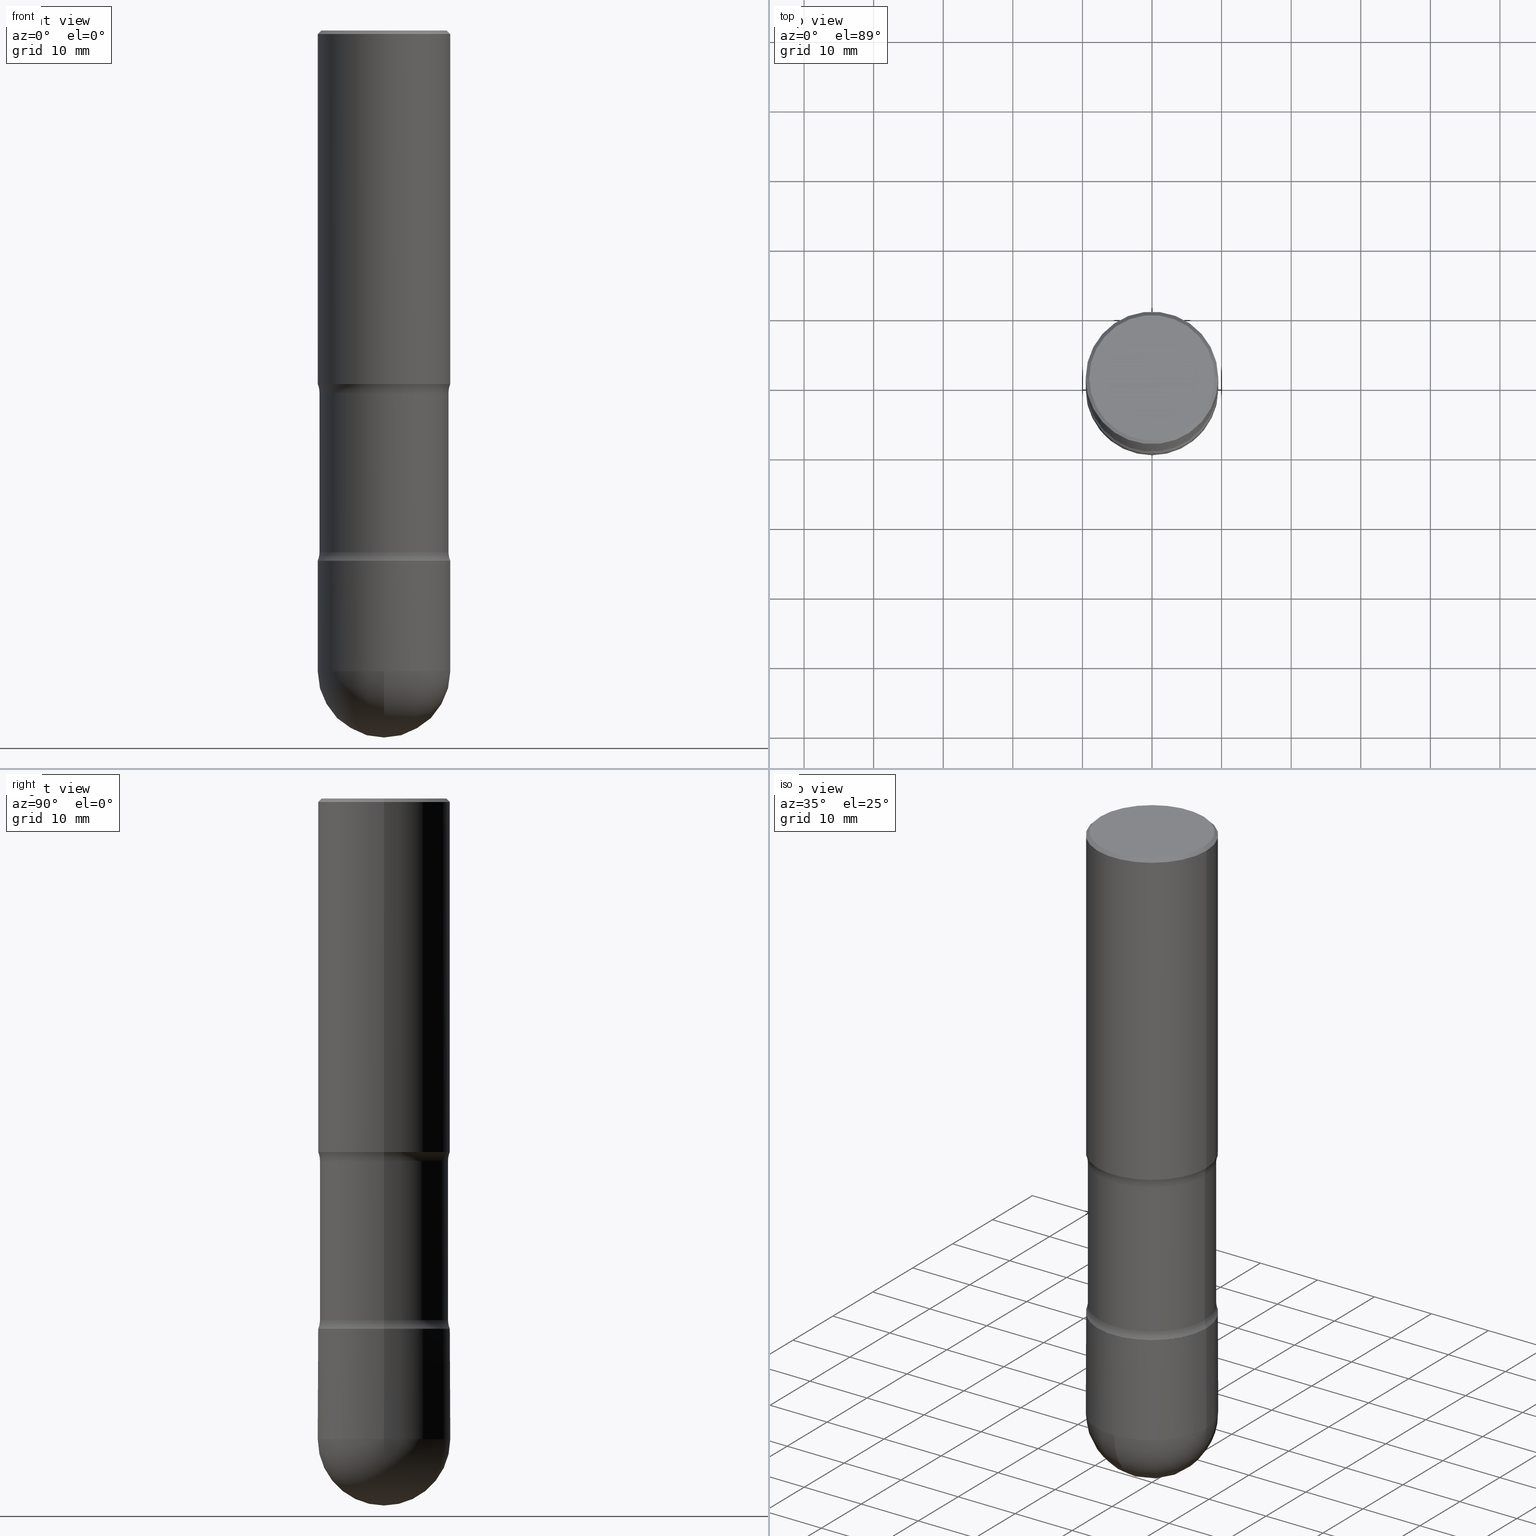
[diagram: canonical four-view strip — front | top / right | iso, engineering-drawing reading convention]
A machine part, canonical four-view strip (front | top / right | iso — engineering-drawing reading convention). The complete STEP part file that produces these views, byte-faithful:
ISO-10303-21;
HEADER;
FILE_DESCRIPTION (( 'STEP AP203' ),
    '1' );
FILE_NAME ('35015.STEP',
    '2024-02-29T19:24:18',
    ( '' ),
    ( '' ),
    'SwSTEP 2.0',
    'SolidWorks 2023',
    '' );
FILE_SCHEMA (( 'CONFIG_CONTROL_DESIGN' ));
ENDSEC;

DATA;
#1 = DIRECTION ( 'NONE',  ( 2.438088387897960049E-29, -3.491481338843145188E-15, -1.000000000000000000 ) ) ;
#2 = ORIENTED_EDGE ( 'NONE', *, *, #188, .T. ) ;
#3 = SHAPE_DEFINITION_REPRESENTATION ( #539, #107 ) ;
#4 = CARTESIAN_POINT ( 'NONE',  ( -0.3649999999999996581, -7.925662639173949635E-15, -2.999999999999999556 ) ) ;
#5 = DIRECTION ( 'NONE',  ( -1.000000000000000000, 6.982962677686265922E-15, -4.876176775795935793E-29 ) ) ;
#6 = VECTOR ( 'NONE', #104, 39.37007874015748143 ) ;
#7 = APPROVAL_PERSON_ORGANIZATION ( #173, #49, #304 ) ;
#8 = DIRECTION ( 'NONE',  ( 2.445468806185136597E-29, -3.491481338843145583E-15, -1.000000000000000000 ) ) ;
#9 = CARTESIAN_POINT ( 'NONE',  ( 7.336406418555408669E-29, -1.047444401652943478E-14, -2.999999999999999556 ) ) ;
#10 = APPROVAL_STATUS ( 'not_yet_approved' ) ;
#11 = DIRECTION ( 'NONE',  ( -1.000000000000000000, 6.982962677686266711E-15, 0.000000000000000000 ) ) ;
#12 = FACE_OUTER_BOUND ( 'NONE', #509, .T. ) ;
#13 = CARTESIAN_POINT ( 'NONE',  ( -0.3749999999999996114, 2.548781377355482774E-15, -0.02000000000000033348 ) ) ;
#14 = VECTOR ( 'NONE', #350, 39.37007874015748143 ) ;
#15 = AXIS2_PLACEMENT_3D ( 'NONE', #77, #250, #429 ) ;
#16 = DIRECTION ( 'NONE',  ( 2.445468806185136597E-29, -3.491481338843145583E-15, -1.000000000000000000 ) ) ;
#17 = APPLICATION_CONTEXT ( 'configuration controlled 3d designs of mechanical parts and assemblies' ) ;
#18 = CARTESIAN_POINT ( 'NONE',  ( -0.3749999999999993894, -8.900996675817548507E-15, -3.624999999999999556 ) ) ;
#19 = EDGE_CURVE ( 'NONE', #286, #115, #545, .T. ) ;
#20 = CARTESIAN_POINT ( 'NONE',  ( 4.890937612370354609E-31, -6.982962677686407473E-17, -0.02000000000000033348 ) ) ;
#21 = EDGE_CURVE ( 'NONE', #565, #43, #337, .T. ) ;
#22 = ORIENTED_EDGE ( 'NONE', *, *, #538, .T. ) ;
#23 = AXIS2_PLACEMENT_3D ( 'NONE', #9, #144, #46 ) ;
#24 = AXIS2_PLACEMENT_3D ( 'NONE', #485, #97, #272 ) ;
#25 = CARTESIAN_POINT ( 'NONE',  ( 7.336406418555408669E-29, -1.047444401652943478E-14, -2.999999999999999556 ) ) ;
#26 = EDGE_CURVE ( 'NONE', #533, #300, #92, .T. ) ;
#27 = DIRECTION ( 'NONE',  ( -2.445468806185136877E-29, 3.491481338843145188E-15, 1.000000000000000000 ) ) ;
#28 = DIRECTION ( 'NONE',  ( -1.000000000000000000, 6.982962677686266711E-15, 0.000000000000000000 ) ) ;
#29 = DIRECTION ( 'NONE',  ( 2.445468806185136597E-29, -3.491481338843145583E-15, -1.000000000000000000 ) ) ;
#30 = ORIENTED_EDGE ( 'NONE', *, *, #348, .T. ) ;
#31 = DIRECTION ( 'NONE',  ( 1.000000000000000000, -6.982962677686266711E-15, 4.883557194083113462E-29 ) ) ;
#32 = EDGE_CURVE ( 'NONE', #115, #286, #234, .T. ) ;
#33 = AXIS2_PLACEMENT_3D ( 'NONE', #44, #483, #227 ) ;
#34 = ORIENTED_EDGE ( 'NONE', *, *, #32, .F. ) ;
#35 = ORIENTED_EDGE ( 'NONE', *, *, #207, .T. ) ;
#36 = CALENDAR_DATE ( 2024, 29, 2 ) ;
#37 = ORIENTED_EDGE ( 'NONE', *, *, #188, .F. ) ;
#38 = DIRECTION ( 'NONE',  ( 7.105427357601001070E-15, 1.000000000000000000, 0.000000000000000000 ) ) ;
#39 = EDGE_LOOP ( 'NONE', ( #341, #242, #215, #78 ) ) ;
#40 = ORIENTED_EDGE ( 'NONE', *, *, #269, .T. ) ;
#41 = ORIENTED_EDGE ( 'NONE', *, *, #359, .T. ) ;
#42 = DIRECTION ( 'NONE',  ( -1.000000000000000000, 6.982962677686265922E-15, 0.000000000000000000 ) ) ;
#43 = VERTEX_POINT ( 'NONE', #330 ) ;
#44 = CARTESIAN_POINT ( 'NONE',  ( 5.010740627511209416E-29, -7.154009632218597667E-15, -2.048989794855664126 ) ) ;
#45 = CARTESIAN_POINT ( 'NONE',  ( -0.3549999999999994826, 2.478951750578621053E-15, -1.731042755407554628E-29 ) ) ;
#46 = DIRECTION ( 'NONE',  ( 1.000000000000000000, -6.982962677686266711E-15, 0.000000000000000000 ) ) ;
#47 = DIRECTION ( 'NONE',  ( -2.445468806185136597E-29, 3.491481338843145583E-15, 1.000000000000000000 ) ) ;
#48 = AXIS2_PLACEMENT_3D ( 'NONE', #540, #493, #231 ) ;
#49 = APPROVAL ( #134, 'UNSPECIFIED' ) ;
#50 = AXIS2_PLACEMENT_3D ( 'NONE', #445, #55, #186 ) ;
#51 = DIRECTION ( 'NONE',  ( 6.860497997771531562E-15, 1.000000000000000000, -3.491481338843145583E-15 ) ) ;
#52 = FACE_OUTER_BOUND ( 'NONE', #39, .T. ) ;
#53 = DIRECTION ( 'NONE',  ( 2.438088387897960049E-29, -3.491481338843145188E-15, -1.000000000000000000 ) ) ;
#54 = CIRCLE ( 'NONE', #274, 0.3750000000000002220 ) ;
#55 = DIRECTION ( 'NONE',  ( 2.445468806185136597E-29, -3.491481338843145583E-15, -1.000000000000000000 ) ) ;
#56 = EDGE_CURVE ( 'NONE', #527, #43, #287, .T. ) ;
#57 = CARTESIAN_POINT ( 'NONE',  ( 8.661722428741013977E-29, -1.294747346810389857E-14, -3.624999999999999556 ) ) ;
#58 = CARTESIAN_POINT ( 'NONE',  ( 0.3749999999999996114, -2.642516375941186056E-15, -0.02000000000000033348 ) ) ;
#59 = DIRECTION ( 'NONE',  ( 2.445468806185136597E-29, -3.491481338843145583E-15, -1.000000000000000000 ) ) ;
#60 =( CONVERSION_BASED_UNIT ( 'INCH', #362 ) LENGTH_UNIT ( ) NAMED_UNIT ( #99 ) );
#61 = DIRECTION ( 'NONE',  ( -1.000000000000000000, 6.982962677686268288E-15, 0.000000000000000000 ) ) ;
#62 = CARTESIAN_POINT ( 'NONE',  ( -0.3744999999999995000, -7.813461471107863922E-15, -2.999999999999999556 ) ) ;
#63 = CC_DESIGN_PERSON_AND_ORGANIZATION_ASSIGNMENT ( #212, #562, ( #149 ) ) ;
#64 = AXIS2_PLACEMENT_3D ( 'NONE', #93, #439, #182 ) ;
#65 = TOROIDAL_SURFACE ( 'NONE', #33, 0.4899999999999880007, 0.1249999999999882871 ) ;
#66 = DIRECTION ( 'NONE',  ( -1.000000000000000000, 6.982962677686266711E-15, 0.000000000000000000 ) ) ;
#67 = PERSON_AND_ORGANIZATION ( #204, #257 ) ;
#68 = FACE_OUTER_BOUND ( 'NONE', #388, .T. ) ;
#69 = ORIENTED_EDGE ( 'NONE', *, *, #32, .T. ) ;
#70 = EDGE_CURVE ( 'NONE', #259, #447, #478, .T. ) ;
#71 = AXIS2_PLACEMENT_3D ( 'NONE', #417, #59, #28 ) ;
#72 = APPROVAL_PERSON_ORGANIZATION ( #466, #100, #248 ) ;
#73 = ADVANCED_FACE ( 'NONE', ( #229 ), #125, .T. ) ;
#74 = ORIENTED_EDGE ( 'NONE', *, *, #148, .T. ) ;
#75 = ORIENTED_EDGE ( 'NONE', *, *, #384, .T. ) ;
#76 = VERTEX_POINT ( 'NONE', #199 ) ;
#77 = CARTESIAN_POINT ( 'NONE',  ( 7.216603403414475810E-29, -1.030339706199713222E-14, -2.951010205144336318 ) ) ;
#78 = ORIENTED_EDGE ( 'NONE', *, *, #21, .T. ) ;
#79 = CARTESIAN_POINT ( 'NONE',  ( 2.615119522793576429E-15, 0.3744999999999890639, -3.000000000000000888 ) ) ;
#80 = APPROVAL ( #10, 'UNSPECIFIED' ) ;
#81 = ORIENTED_EDGE ( 'NONE', *, *, #161, .F. ) ;
#82 = DIRECTION ( 'NONE',  ( -1.000000000000000000, 6.982962677686267499E-15, 0.000000000000000000 ) ) ;
#83 = VECTOR ( 'NONE', #237, 39.37007874015748143 ) ;
#84 = ORIENTED_EDGE ( 'NONE', *, *, #559, .F. ) ;
#85 = DATE_AND_TIME ( #474, #214 ) ;
#86 = FACE_OUTER_BOUND ( 'NONE', #249, .T. ) ;
#87 = APPROVAL_ROLE ( '' ) ;
#88 = CARTESIAN_POINT ( 'NONE',  ( 7.336406418555408669E-29, -1.047444401652943478E-14, -2.999999999999999556 ) ) ;
#89 = ADVANCED_FACE ( 'NONE', ( #537 ), #192, .T. ) ;
#90 = COORDINATED_UNIVERSAL_TIME_OFFSET ( 5, 0, .BEHIND. ) ;
#91 = DIRECTION ( 'NONE',  ( -1.000000000000000000, 6.982962677686267499E-15, 0.000000000000000000 ) ) ;
#92 = CIRCLE ( 'NONE', #405, 0.3549999999999994826 ) ;
#93 = CARTESIAN_POINT ( 'NONE',  ( 0.000000000000000000, 0.000000000000000000, 0.000000000000000000 ) ) ;
#94 = AXIS2_PLACEMENT_3D ( 'NONE', #501, #209, #82 ) ;
#95 = CARTESIAN_POINT ( 'NONE',  ( 7.336406418555408669E-29, -1.047444401652943478E-14, -2.999999999999999556 ) ) ;
#96 = ADVANCED_FACE ( 'NONE', ( #68 ), #235, .T. ) ;
#97 = DIRECTION ( 'NONE',  ( -2.445468806185136597E-29, 3.491481338843145583E-15, 1.000000000000000000 ) ) ;
#98 = MANIFOLD_SOLID_BREP ( 'Body-Move/Copy2[1]', #228 ) ;
#99 = DIMENSIONAL_EXPONENTS ( 1.000000000000000000, 0.000000000000000000, 0.000000000000000000, 0.000000000000000000, 0.000000000000000000, 0.000000000000000000, 0.000000000000000000 ) ;
#100 = APPROVAL ( #340, 'UNSPECIFIED' ) ;
#101 = DIRECTION ( 'NONE',  ( 1.000000000000000000, -6.982962677686266711E-15, 4.883557194083113462E-29 ) ) ;
#102 =( NAMED_UNIT ( * ) SI_UNIT ( $, .STERADIAN. ) SOLID_ANGLE_UNIT ( ) );
#103 = CIRCLE ( 'NONE', #327, 0.3749999999999998890 ) ;
#104 = DIRECTION ( 'NONE',  ( -0.7071067811868226860, 7.493145998871348125E-15, 0.7071067811862723484 ) ) ;
#105 = AXIS2_PLACEMENT_3D ( 'NONE', #95, #16, #183 ) ;
#106 =( LENGTH_UNIT ( ) NAMED_UNIT ( * ) SI_UNIT ( $, .METRE. ) );
#107 = ADVANCED_BREP_SHAPE_REPRESENTATION ( '35015', ( #98, #285, #434 ), #371 ) ;
#108 = DIRECTION ( 'NONE',  ( 2.445468806185136597E-29, -3.491481338843145583E-15, -1.000000000000000000 ) ) ;
#109 = CYLINDRICAL_SURFACE ( 'NONE', #514, 0.3749999999999993894 ) ;
#110 = ADVANCED_FACE ( 'NONE', ( #316 ), #241, .T. ) ;
#111 = DIRECTION ( 'NONE',  ( -2.445468806185136597E-29, 3.491481338843145583E-15, 1.000000000000000000 ) ) ;
#112 = DIRECTION ( 'NONE',  ( -2.445468806185136597E-29, 3.491481338843145583E-15, 1.000000000000000000 ) ) ;
#113 = CARTESIAN_POINT ( 'NONE',  ( -0.3749999999999993894, 2.664535259100371358E-15, -1.844600658845586515E-29 ) ) ;
#114 = CIRCLE ( 'NONE', #145, 0.1249999999999882871 ) ;
#115 = VERTEX_POINT ( 'NONE', #151 ) ;
#116 = AXIS2_PLACEMENT_3D ( 'NONE', #335, #128, #252 ) ;
#117 = DIRECTION ( 'NONE',  ( 1.000000000000000000, -6.982962677686264344E-15, 0.000000000000000000 ) ) ;
#118 = FACE_OUTER_BOUND ( 'NONE', #500, .T. ) ;
#119 = VERTEX_POINT ( 'NONE', #326 ) ;
#120 = EDGE_CURVE ( 'NONE', #155, #320, #103, .T. ) ;
#121 = CALENDAR_DATE ( 2024, 29, 2 ) ;
#122 = ORIENTED_EDGE ( 'NONE', *, *, #482, .F. ) ;
#123 = EDGE_CURVE ( 'NONE', #320, #155, #309, .T. ) ;
#124 = FACE_OUTER_BOUND ( 'NONE', #566, .T. ) ;
#125 = CONICAL_SURFACE ( 'NONE', #460, 0.3749999999999996114, 0.7853981633974431720 ) ;
#126 = AXIS2_PLACEMENT_3D ( 'NONE', #401, #53, #404 ) ;
#127 = EDGE_LOOP ( 'NONE', ( #379, #74, #467, #410 ) ) ;
#128 = DIRECTION ( 'NONE',  ( 2.445468806185136597E-29, -3.491481338843145583E-15, -1.000000000000000000 ) ) ;
#129 = EDGE_CURVE ( 'NONE', #240, #286, #190, .T. ) ;
#130 = ORIENTED_EDGE ( 'NONE', *, *, #175, .T. ) ;
#131 = DIRECTION ( 'NONE',  ( 2.445468806185136597E-29, -3.491481338843145583E-15, -1.000000000000000000 ) ) ;
#132 = ORIENTED_EDGE ( 'NONE', *, *, #26, .F. ) ;
#133 = PRODUCT_DEFINITION_FORMATION_WITH_SPECIFIED_SOURCE ( 'ANY', '', #149, .NOT_KNOWN. ) ;
#134 = APPROVAL_STATUS ( 'not_yet_approved' ) ;
#135 = CARTESIAN_POINT ( 'NONE',  ( 4.890937612370354609E-31, -6.982962677686407473E-17, -0.02000000000000033348 ) ) ;
#136 = DIRECTION ( 'NONE',  ( 2.445468806185136597E-29, -3.491481338843145583E-15, -1.000000000000000000 ) ) ;
#137 = VECTOR ( 'NONE', #328, 39.37007874015748143 ) ;
#138 = CIRCLE ( 'NONE', #495, 0.3749999999999993894 ) ;
#139 = LOCAL_TIME ( 14, 24, 18.00000000000000000, #294 ) ;
#140 = CARTESIAN_POINT ( 'NONE',  ( 0.3649999999999996581, -1.297852578571604102E-14, -2.999999999999999556 ) ) ;
#141 = CARTESIAN_POINT ( 'NONE',  ( 7.336406418555408669E-29, -1.047444401652943478E-14, -2.999999999999999556 ) ) ;
#142 = CARTESIAN_POINT ( 'NONE',  ( 0.4899999999999880007, -1.051565365112656647E-14, -2.048989794855664126 ) ) ;
#143 = DIRECTION ( 'NONE',  ( -1.000000000000000000, 6.982962677686266711E-15, 0.000000000000000000 ) ) ;
#144 = DIRECTION ( 'NONE',  ( -2.445468806185136597E-29, 3.491481338843145583E-15, 1.000000000000000000 ) ) ;
#145 = AXIS2_PLACEMENT_3D ( 'NONE', #360, #530, #367 ) ;
#146 = DIRECTION ( 'NONE',  ( 2.445468806185136877E-29, -3.491481338843145188E-15, -1.000000000000000000 ) ) ;
#147 = AXIS2_PLACEMENT_3D ( 'NONE', #197, #29, #370 ) ;
#148 = EDGE_CURVE ( 'NONE', #76, #155, #282, .T. ) ;
#149 = PRODUCT ( '35015', '35015', '', ( #251 ) ) ;
#150 = CARTESIAN_POINT ( 'NONE',  ( 7.216603403414475810E-29, -1.030339706199713222E-14, -2.951010205144336318 ) ) ;
#151 = CARTESIAN_POINT ( 'NONE',  ( 0.3749999999999995004, -1.309305502066178164E-14, -2.999999999999999556 ) ) ;
#152 = DIRECTION ( 'NONE',  ( 1.000000000000000000, -6.982962677686264344E-15, 0.000000000000000000 ) ) ;
#153 = ORIENTED_EDGE ( 'NONE', *, *, #230, .T. ) ;
#154 = ADVANCED_FACE ( 'NONE', ( #118 ), #109, .T. ) ;
#155 = VERTEX_POINT ( 'NONE', #411 ) ;
#156 = APPROVAL_DATE_TIME ( #238, #100 ) ;
#157 = ORIENTED_EDGE ( 'NONE', *, *, #129, .F. ) ;
#158 = CIRCLE ( 'NONE', #71, 0.3748510749934464426 ) ;
#159 = EDGE_CURVE ( 'NONE', #43, #565, #158, .T. ) ;
#160 = CONICAL_SURFACE ( 'NONE', #496, 0.3744999999999995000, 0.7853981633978374122 ) ;
#161 = EDGE_CURVE ( 'NONE', #342, #178, #54, .T. ) ;
#162 = SECURITY_CLASSIFICATION_LEVEL ( 'unclassified' ) ;
#163 = EDGE_LOOP ( 'NONE', ( #332, #303, #336, #297 ) ) ;
#164 = DIRECTION ( 'NONE',  ( 1.000000000000000000, -6.982962677686268288E-15, 0.000000000000000000 ) ) ;
#165 = EDGE_LOOP ( 'NONE', ( #211, #386, #416, #295 ) ) ;
#166 = ORIENTED_EDGE ( 'NONE', *, *, #70, .T. ) ;
#167 = CARTESIAN_POINT ( 'NONE',  ( -0.3744999999999995000, -7.811601316282283862E-15, -2.999999999999999556 ) ) ;
#168 = VERTEX_POINT ( 'NONE', #264 ) ;
#169 = DIRECTION ( 'NONE',  ( 2.445468806185136597E-29, -3.491481338843145583E-15, -1.000000000000000000 ) ) ;
#170 = VECTOR ( 'NONE', #146, 39.37007874015748143 ) ;
#171 = CONICAL_SURFACE ( 'NONE', #147, 0.3749999999999996114, 0.7853981633974431720 ) ;
#172 = DIRECTION ( 'NONE',  ( 2.445468806185136597E-29, -3.491481338843145583E-15, -1.000000000000000000 ) ) ;
#173 = PERSON_AND_ORGANIZATION ( #204, #257 ) ;
#174 = FACE_OUTER_BOUND ( 'NONE', #381, .T. ) ;
#175 = EDGE_CURVE ( 'NONE', #533, #462, #262, .T. ) ;
#176 = DIRECTION ( 'NONE',  ( -1.000000000000000000, 6.982962677686266711E-15, 0.000000000000000000 ) ) ;
#177 = CYLINDRICAL_SURFACE ( 'NONE', #293, 0.3749999999999993894 ) ;
#178 = VERTEX_POINT ( 'NONE', #311 ) ;
#179 = LINE ( 'NONE', #140, #406 ) ;
#180 = CARTESIAN_POINT ( 'NONE',  ( 0.3748510749934464426, -1.304488329419632673E-14, -2.999648925006553224 ) ) ;
#181 = CC_DESIGN_DATE_AND_TIME_ASSIGNMENT ( #85, #511, ( #507 ) ) ;
#182 = DIRECTION ( 'NONE',  ( -1.000000000000000000, 6.982962677686266711E-15, -4.876176775795935793E-29 ) ) ;
#183 = DIRECTION ( 'NONE',  ( -1.000000000000000000, 6.982962677686268288E-15, 0.000000000000000000 ) ) ;
#184 = ORIENTED_EDGE ( 'NONE', *, *, #21, .F. ) ;
#185 = ORIENTED_EDGE ( 'NONE', *, *, #559, .T. ) ;
#186 = DIRECTION ( 'NONE',  ( -1.000000000000000000, 6.982962677686267499E-15, 0.000000000000000000 ) ) ;
#187 = DIRECTION ( 'NONE',  ( -6.982962677686266711E-15, -1.000000000000000000, 2.913971193241878794E-15 ) ) ;
#188 = EDGE_CURVE ( 'NONE', #300, #533, #556, .T. ) ;
#189 = AXIS2_PLACEMENT_3D ( 'NONE', #57, #31, #187 ) ;
#190 = LINE ( 'NONE', #113, #83 ) ;
#191 = CIRCLE ( 'NONE', #356, 0.1249999999999882871 ) ;
#192 = CYLINDRICAL_SURFACE ( 'NONE', #301, 0.3749999999999997780 ) ;
#193 = ADVANCED_FACE ( 'NONE', ( #357 ), #391, .T. ) ;
#194 = CARTESIAN_POINT ( 'NONE',  ( 0.3749999999999993894, -1.418414293905026633E-14, -3.624999999999999556 ) ) ;
#195 = CARTESIAN_POINT ( 'NONE',  ( 8.661722428741013977E-29, -1.294747346810389857E-14, -3.624999999999999556 ) ) ;
#196 = CC_DESIGN_PERSON_AND_ORGANIZATION_ASSIGNMENT ( #67, #459, ( #551 ) ) ;
#197 = CARTESIAN_POINT ( 'NONE',  ( 4.890937612370354609E-31, -6.982962677686407473E-17, -0.02000000000000033348 ) ) ;
#198 = ORIENTED_EDGE ( 'NONE', *, *, #430, .F. ) ;
#199 = CARTESIAN_POINT ( 'NONE',  ( 0.3749999999999996114, -2.642516375941186056E-15, -0.02000000000000033348 ) ) ;
#200 = AXIS2_PLACEMENT_3D ( 'NONE', #312, #484, #176 ) ;
#201 = CIRCLE ( 'NONE', #414, 0.3749999999999996114 ) ;
#202 = APPROVAL_PERSON_ORGANIZATION ( #469, #80, #87 ) ;
#203 = ORIENTED_EDGE ( 'NONE', *, *, #120, .T. ) ;
#204 = PERSON ( 'UNSPECIFIED', 'UNSPECIFIED', 'UNSPECIFIED', ('UNSPECIFIED'), ('UNSPECIFIED'), ('UNSPECIFIED') ) ;
#205 = ORIENTED_EDGE ( 'NONE', *, *, #482, .T. ) ;
#206 = ORIENTED_EDGE ( 'NONE', *, *, #449, .T. ) ;
#207 = EDGE_CURVE ( 'NONE', #178, #259, #382, .T. ) ;
#208 = EDGE_LOOP ( 'NONE', ( #69, #217 ) ) ;
#209 = DIRECTION ( 'NONE',  ( 2.445468806185136597E-29, -3.491481338843145583E-15, -1.000000000000000000 ) ) ;
#210 = PERSON_AND_ORGANIZATION_ROLE ( 'design_supplier' ) ;
#211 = ORIENTED_EDGE ( 'NONE', *, *, #26, .T. ) ;
#212 = PERSON_AND_ORGANIZATION ( #204, #257 ) ;
#213 = CIRCLE ( 'NONE', #394, 0.3744999999999995000 ) ;
#214 = LOCAL_TIME ( 14, 24, 18.00000000000000000, #90 ) ;
#215 = ORIENTED_EDGE ( 'NONE', *, *, #516, .T. ) ;
#216 = APPLICATION_PROTOCOL_DEFINITION ( 'international standard', 'config_control_design', 1994, #17 ) ;
#217 = ORIENTED_EDGE ( 'NONE', *, *, #19, .T. ) ;
#218 = EDGE_LOOP ( 'NONE', ( #291, #185, #30, #465 ) ) ;
#219 = APPROVAL_DATE_TIME ( #389, #80 ) ;
#220 = CARTESIAN_POINT ( 'NONE',  ( 7.216603403414474689E-29, -1.030339706199713064E-14, -2.951010205144335874 ) ) ;
#221 = DIRECTION ( 'NONE',  ( 1.000000000000000000, -6.982962677686266711E-15, 4.876176775795936353E-29 ) ) ;
#222 = AXIS2_PLACEMENT_3D ( 'NONE', #321, #415, #366 ) ;
#223 = CIRCLE ( 'NONE', #50, 0.3649999999999996581 ) ;
#224 = SPHERICAL_SURFACE ( 'NONE', #534, 0.3750000000000002220 ) ;
#225 = EDGE_CURVE ( 'NONE', #300, #76, #407, .T. ) ;
#226 = CARTESIAN_POINT ( 'NONE',  ( -0.3749999999999996114, 2.548781377355482774E-15, -0.02000000000000033348 ) ) ;
#227 = DIRECTION ( 'NONE',  ( -1.000000000000000000, 6.982962677686266711E-15, -4.883557194083112901E-29 ) ) ;
#228 = CLOSED_SHELL ( 'NONE', ( #413, #110, #307, #154, #322 ) ) ;
#229 = FACE_OUTER_BOUND ( 'NONE', #165, .T. ) ;
#230 = EDGE_CURVE ( 'NONE', #259, #115, #233, .T. ) ;
#231 = DIRECTION ( 'NONE',  ( -1.000000000000000000, 6.860497997771529196E-15, 0.000000000000000000 ) ) ;
#232 = ORIENTED_EDGE ( 'NONE', *, *, #70, .F. ) ;
#233 = LINE ( 'NONE', #451, #488 ) ;
#234 = CIRCLE ( 'NONE', #452, 0.3749999999999995004 ) ;
#235 = PLANE ( 'NONE',  #222 ) ;
#236 = AXIS2_PLACEMENT_3D ( 'NONE', #512, #131, #42 ) ;
#237 = DIRECTION ( 'NONE',  ( -2.445468806185136877E-29, 3.491481338843145188E-15, 1.000000000000000000 ) ) ;
#238 = DATE_AND_TIME ( #36, #139 ) ;
#239 = CARTESIAN_POINT ( 'NONE',  ( 0.3549999999999994826, -2.538996582575037893E-15, 1.754627344940448002E-29 ) ) ;
#240 = VERTEX_POINT ( 'NONE', #18 ) ;
#241 = SPHERICAL_SURFACE ( 'NONE', #189, 0.3750000000000002220 ) ;
#242 = ORIENTED_EDGE ( 'NONE', *, *, #261, .F. ) ;
#243 = CIRCLE ( 'NONE', #318, 0.3749999999999993894 ) ;
#244 = DATE_AND_TIME ( #296, #329 ) ;
#245 = EDGE_CURVE ( 'NONE', #240, #178, #243, .T. ) ;
#246 = ORIENTED_EDGE ( 'NONE', *, *, #19, .F. ) ;
#247 = CARTESIAN_POINT ( 'NONE',  ( 7.336406418555408669E-29, -1.047444401652943478E-14, -2.999999999999999556 ) ) ;
#248 = APPROVAL_ROLE ( '' ) ;
#249 = EDGE_LOOP ( 'NONE', ( #426, #198, #40, #253 ) ) ;
#250 = DIRECTION ( 'NONE',  ( 2.445468806185136597E-29, -3.491481338843145583E-15, -1.000000000000000000 ) ) ;
#251 = MECHANICAL_CONTEXT ( 'NONE', #17, 'mechanical' ) ;
#252 = DIRECTION ( 'NONE',  ( -1.000000000000000000, 6.982962677686266711E-15, -4.883557194083112901E-29 ) ) ;
#253 = ORIENTED_EDGE ( 'NONE', *, *, #123, .T. ) ;
#254 = EDGE_LOOP ( 'NONE', ( #184, #456, #428, #529 ) ) ;
#255 = CARTESIAN_POINT ( 'NONE',  ( 0.3649999999999996581, -1.123278511629446961E-14, -2.951010205144335874 ) ) ;
#256 = CC_DESIGN_APPROVAL ( #49, ( #551 ) ) ;
#257 = ORGANIZATION ( 'UNSPECIFIED', 'UNSPECIFIED', '' ) ;
#258 = LOCAL_TIME ( 14, 24, 18.00000000000000000, #270 ) ;
#259 = VERTEX_POINT ( 'NONE', #194 ) ;
#260 = ORIENTED_EDGE ( 'NONE', *, *, #348, .F. ) ;
#261 = EDGE_CURVE ( 'NONE', #351, #527, #213, .T. ) ;
#262 = LINE ( 'NONE', #13, #14 ) ;
#263 = DIRECTION ( 'NONE',  ( 2.445468806185136877E-29, -3.491481338843145188E-15, -1.000000000000000000 ) ) ;
#264 = CARTESIAN_POINT ( 'NONE',  ( -0.3649999999999997136, -4.605228254863111737E-15, -2.048989794855664126 ) ) ;
#265 = CYLINDRICAL_SURFACE ( 'NONE', #423, 0.3649999999999996581 ) ;
#266 = AXIS2_PLACEMENT_3D ( 'NONE', #373, #543, #152 ) ;
#267 = CIRCLE ( 'NONE', #236, 0.3649999999999997136 ) ;
#268 = CC_DESIGN_PERSON_AND_ORGANIZATION_ASSIGNMENT ( #280, #398, ( #507 ) ) ;
#269 = EDGE_CURVE ( 'NONE', #168, #320, #114, .T. ) ;
#270 = COORDINATED_UNIVERSAL_TIME_OFFSET ( 5, 0, .BEHIND. ) ;
#271 = PLANE ( 'NONE',  #126 ) ;
#272 = DIRECTION ( 'NONE',  ( 1.000000000000000000, -6.982962677686268288E-15, 0.000000000000000000 ) ) ;
#273 = DIRECTION ( 'NONE',  ( 2.445468806185136597E-29, -3.491481338843145583E-15, -1.000000000000000000 ) ) ;
#274 = AXIS2_PLACEMENT_3D ( 'NONE', #195, #473, #353 ) ;
#275 = CIRCLE ( 'NONE', #347, 0.3649999999999997136 ) ;
#276 = DIRECTION ( 'NONE',  ( 2.445468806185136597E-29, -3.491481338843145583E-15, -1.000000000000000000 ) ) ;
#277 = DIRECTION ( 'NONE',  ( 0.7071067811868226860, -2.468850131085139164E-15, 0.7071067811862723484 ) ) ;
#278 = EDGE_CURVE ( 'NONE', #565, #548, #292, .T. ) ;
#279 = DIRECTION ( 'NONE',  ( -2.445468806185136597E-29, 3.491481338843145583E-15, 1.000000000000000000 ) ) ;
#280 = PERSON_AND_ORGANIZATION ( #204, #257 ) ;
#281 = CARTESIAN_POINT ( 'NONE',  ( 7.336406418555408669E-29, -1.047444401652943478E-14, -2.999999999999999556 ) ) ;
#282 = LINE ( 'NONE', #531, #170 ) ;
#283 = ADVANCED_FACE ( 'NONE', ( #409 ), #433, .F. ) ;
#284 = CC_DESIGN_APPROVAL ( #80, ( #507 ) ) ;
#285 = MANIFOLD_SOLID_BREP ( 'Body-Move/Copy2[2]', #522 ) ;
#286 = VERTEX_POINT ( 'NONE', #542 ) ;
#287 = LINE ( 'NONE', #62, #6 ) ;
#288 = ORIENTED_EDGE ( 'NONE', *, *, #245, .T. ) ;
#289 = DIRECTION ( 'NONE',  ( -2.445468806185136597E-29, 3.491481338843145583E-15, 1.000000000000000000 ) ) ;
#290 = ADVANCED_FACE ( 'NONE', ( #547 ), #171, .T. ) ;
#291 = ORIENTED_EDGE ( 'NONE', *, *, #317, .F. ) ;
#292 = CIRCLE ( 'NONE', #48, 0.1250000000000003053 ) ;
#293 = AXIS2_PLACEMENT_3D ( 'NONE', #441, #47, #221 ) ;
#294 = COORDINATED_UNIVERSAL_TIME_OFFSET ( 5, 0, .BEHIND. ) ;
#295 = ORIENTED_EDGE ( 'NONE', *, *, #175, .F. ) ;
#296 = CALENDAR_DATE ( 2024, 29, 2 ) ;
#297 = ORIENTED_EDGE ( 'NONE', *, *, #532, .F. ) ;
#298 = FACE_OUTER_BOUND ( 'NONE', #339, .T. ) ;
#299 = CYLINDRICAL_SURFACE ( 'NONE', #94, 0.3649999999999996581 ) ;
#300 = VERTEX_POINT ( 'NONE', #239 ) ;
#301 = AXIS2_PLACEMENT_3D ( 'NONE', #369, #549, #66 ) ;
#302 = AXIS2_PLACEMENT_3D ( 'NONE', #79, #1, #5 ) ;
#303 = ORIENTED_EDGE ( 'NONE', *, *, #161, .T. ) ;
#304 = APPROVAL_ROLE ( '' ) ;
#305 = DIRECTION ( 'NONE',  ( -1.000000000000000000, 6.860497997771536296E-15, 0.000000000000000000 ) ) ;
#306 = CARTESIAN_POINT ( 'NONE',  ( -0.4899999999999999911, -6.881745349930862950E-15, -2.951010205144336318 ) ) ;
#307 = ADVANCED_FACE ( 'NONE', ( #418 ), #224, .T. ) ;
#308 = CARTESIAN_POINT ( 'NONE',  ( 8.661722428741013977E-29, -1.294747346810389857E-14, -3.624999999999999556 ) ) ;
#309 = CIRCLE ( 'NONE', #355, 0.3749999999999998890 ) ;
#310 = CIRCLE ( 'NONE', #105, 0.3744999999999995000 ) ;
#311 = CARTESIAN_POINT ( 'NONE',  ( -2.618611004132261270E-15, -0.3750000000000126565, -3.624999999999998668 ) ) ;
#312 = CARTESIAN_POINT ( 'NONE',  ( 7.335547875610304013E-29, -1.047321824474128255E-14, -2.999648925006553224 ) ) ;
#313 = DIRECTION ( 'NONE',  ( 2.445468806185136877E-29, -3.491481338843145188E-15, -1.000000000000000000 ) ) ;
#314 = DIRECTION ( 'NONE',  ( -1.000000000000000000, 6.982962677686266711E-15, 0.000000000000000000 ) ) ;
#315 = DIRECTION ( 'NONE',  ( 1.000000000000000000, -6.982962677686264344E-15, 0.000000000000000000 ) ) ;
#316 = FACE_OUTER_BOUND ( 'NONE', #550, .T. ) ;
#317 = EDGE_CURVE ( 'NONE', #119, #548, #179, .T. ) ;
#318 = AXIS2_PLACEMENT_3D ( 'NONE', #490, #365, #117 ) ;
#319 = LOCAL_TIME ( 14, 24, 18.00000000000000000, #376 ) ;
#320 = VERTEX_POINT ( 'NONE', #475 ) ;
#321 = CARTESIAN_POINT ( 'NONE',  ( 2.478951750578621053E-15, 0.3549999999999994826, -1.237341619044264652E-15 ) ) ;
#322 = ADVANCED_FACE ( 'NONE', ( #519 ), #271, .F. ) ;
#323 = ADVANCED_FACE ( 'NONE', ( #52 ), #557, .T. ) ;
#324 = ADVANCED_FACE ( 'NONE', ( #12 ), #265, .T. ) ;
#325 = DIRECTION ( 'NONE',  ( 2.445468806185136597E-29, -3.491481338843145583E-15, -1.000000000000000000 ) ) ;
#326 = CARTESIAN_POINT ( 'NONE',  ( 0.3649999999999997136, -9.606870414127914833E-15, -2.048989794855664126 ) ) ;
#327 = AXIS2_PLACEMENT_3D ( 'NONE', #486, #276, #361 ) ;
#328 = DIRECTION ( 'NONE',  ( 0.7071067811865439090, -7.319954787623243424E-15, -0.7071067811865511255 ) ) ;
#329 = LOCAL_TIME ( 14, 24, 18.00000000000000000, #331 ) ;
#330 = CARTESIAN_POINT ( 'NONE',  ( -0.3748510749934464426, -7.855647178371469509E-15, -2.999648925006553224 ) ) ;
#331 = COORDINATED_UNIVERSAL_TIME_OFFSET ( 5, 0, .BEHIND. ) ;
#332 = ORIENTED_EDGE ( 'NONE', *, *, #538, .F. ) ;
#333 = ORIENTED_EDGE ( 'NONE', *, *, #207, .F. ) ;
#334 = EDGE_CURVE ( 'NONE', #548, #558, #480, .T. ) ;
#335 = CARTESIAN_POINT ( 'NONE',  ( 5.010740627511209416E-29, -7.154009632218597667E-15, -2.048989794855664126 ) ) ;
#336 = ORIENTED_EDGE ( 'NONE', *, *, #245, .F. ) ;
#337 = CIRCLE ( 'NONE', #200, 0.3748510749934464426 ) ;
#338 = VECTOR ( 'NONE', #263, 39.37007874015748143 ) ;
#339 = EDGE_LOOP ( 'NONE', ( #513, #206 ) ) ;
#340 = APPROVAL_STATUS ( 'not_yet_approved' ) ;
#341 = ORIENTED_EDGE ( 'NONE', *, *, #56, .F. ) ;
#342 = VERTEX_POINT ( 'NONE', #349 ) ;
#343 = EDGE_CURVE ( 'NONE', #462, #76, #383, .T. ) ;
#344 = DIRECTION ( 'NONE',  ( -2.445468806185136597E-29, 3.491481338843145583E-15, 1.000000000000000000 ) ) ;
#345 = AXIS2_PLACEMENT_3D ( 'NONE', #141, #273, #143 ) ;
#346 = FACE_OUTER_BOUND ( 'NONE', #555, .T. ) ;
#347 = AXIS2_PLACEMENT_3D ( 'NONE', #479, #352, #390 ) ;
#348 = EDGE_CURVE ( 'NONE', #168, #558, #517, .T. ) ;
#349 = CARTESIAN_POINT ( 'NONE',  ( 9.562738863138327646E-29, -1.427974109765409430E-14, -4.000000000000000000 ) ) ;
#350 = DIRECTION ( 'NONE',  ( -0.7071067811865439090, 2.468850131082218801E-15, -0.7071067811865511255 ) ) ;
#351 = VERTEX_POINT ( 'NONE', #438 ) ;
#352 = DIRECTION ( 'NONE',  ( 2.445468806185136597E-29, -3.491481338843145583E-15, -1.000000000000000000 ) ) ;
#353 = DIRECTION ( 'NONE',  ( -6.982962677686266711E-15, -1.000000000000000000, 0.000000000000000000 ) ) ;
#354 = DIRECTION ( 'NONE',  ( -6.982962677686266711E-15, -1.000000000000000000, 3.491481338843145583E-15 ) ) ;
#355 = AXIS2_PLACEMENT_3D ( 'NONE', #448, #494, #491 ) ;
#356 = AXIS2_PLACEMENT_3D ( 'NONE', #142, #51, #305 ) ;
#357 = FACE_OUTER_BOUND ( 'NONE', #127, .T. ) ;
#358 = DIRECTION ( 'NONE',  ( -1.000000000000000000, 6.982962677686267499E-15, 0.000000000000000000 ) ) ;
#359 = EDGE_CURVE ( 'NONE', #43, #558, #546, .T. ) ;
#360 = CARTESIAN_POINT ( 'NONE',  ( -0.4899999999999880007, -3.732357920152410440E-15, -2.048989794855664126 ) ) ;
#361 = DIRECTION ( 'NONE',  ( -1.000000000000000000, 6.982962677686266711E-15, 0.000000000000000000 ) ) ;
#362 = LENGTH_MEASURE_WITH_UNIT ( LENGTH_MEASURE( 0.02539999999999999897 ), #106 );
#363 = TOROIDAL_SURFACE ( 'NONE', #15, 0.4899999999999999911, 0.1250000000000003053 ) ;
#364 = EDGE_CURVE ( 'NONE', #76, #462, #201, .T. ) ;
#365 = DIRECTION ( 'NONE',  ( -2.445468806185136597E-29, 3.491481338843145583E-15, 1.000000000000000000 ) ) ;
#366 = DIRECTION ( 'NONE',  ( 1.000000000000000000, -6.982962677686265922E-15, 4.876176775795935793E-29 ) ) ;
#367 = DIRECTION ( 'NONE',  ( 1.000000000000000000, -6.982962677686268288E-15, 0.000000000000000000 ) ) ;
#368 = EDGE_LOOP ( 'NONE', ( #560, #432, #41, #205 ) ) ;
#369 = CARTESIAN_POINT ( 'NONE',  ( 7.336406418555408669E-29, -1.047444401652943478E-14, -2.999999999999999556 ) ) ;
#370 = DIRECTION ( 'NONE',  ( -1.000000000000000000, 6.982962677686266711E-15, 0.000000000000000000 ) ) ;
#371 =( GEOMETRIC_REPRESENTATION_CONTEXT ( 3 ) GLOBAL_UNCERTAINTY_ASSIGNED_CONTEXT ( ( #402 ) ) GLOBAL_UNIT_ASSIGNED_CONTEXT ( ( #60, #525, #102 ) ) REPRESENTATION_CONTEXT ( 'NONE', 'WORKASPACE' ) );
#372 = ORIENTED_EDGE ( 'NONE', *, *, #129, .T. ) ;
#373 = CARTESIAN_POINT ( 'NONE',  ( 8.864824422421120163E-29, -1.265661985330640259E-14, -3.624999999999999556 ) ) ;
#374 = CC_DESIGN_SECURITY_CLASSIFICATION ( #507, ( #133 ) ) ;
#375 = DIRECTION ( 'NONE',  ( 1.000000000000000000, -7.105427357601001070E-15, 4.926315508542082329E-29 ) ) ;
#376 = COORDINATED_UNIVERSAL_TIME_OFFSET ( 5, 0, .BEHIND. ) ;
#377 = EDGE_LOOP ( 'NONE', ( #435, #436, #75, #508 ) ) ;
#378 = ORIENTED_EDGE ( 'NONE', *, *, #516, .F. ) ;
#379 = ORIENTED_EDGE ( 'NONE', *, *, #343, .T. ) ;
#380 = CARTESIAN_POINT ( 'NONE',  ( -0.3649999999999996581, -7.754615684641645500E-15, -2.951010205144335874 ) ) ;
#381 = EDGE_LOOP ( 'NONE', ( #419, #372, #34, #506, #166 ) ) ;
#382 = CIRCLE ( 'NONE', #422, 0.3749999999999993894 ) ;
#383 = CIRCLE ( 'NONE', #443, 0.3749999999999996114 ) ;
#384 = EDGE_CURVE ( 'NONE', #462, #320, #396, .T. ) ;
#385 = APPROVAL_DATE_TIME ( #499, #49 ) ;
#386 = ORIENTED_EDGE ( 'NONE', *, *, #225, .T. ) ;
#387 = ORIENTED_EDGE ( 'NONE', *, *, #159, .T. ) ;
#388 = EDGE_LOOP ( 'NONE', ( #132, #37 ) ) ;
#389 = DATE_AND_TIME ( #440, #258 ) ;
#390 = DIRECTION ( 'NONE',  ( -1.000000000000000000, 6.982962677686265922E-15, 0.000000000000000000 ) ) ;
#391 = CYLINDRICAL_SURFACE ( 'NONE', #345, 0.3749999999999997780 ) ;
#392 = ADVANCED_FACE ( 'NONE', ( #346 ), #65, .F. ) ;
#393 = CARTESIAN_POINT ( 'NONE',  ( 0.000000000000000000, 0.000000000000000000, 0.000000000000000000 ) ) ;
#394 = AXIS2_PLACEMENT_3D ( 'NONE', #25, #108, #61 ) ;
#395 = DIRECTION ( 'NONE',  ( 1.000000000000000000, 0.000000000000000000, 0.000000000000000000 ) ) ;
#396 = LINE ( 'NONE', #442, #338 ) ;
#397 = TOROIDAL_SURFACE ( 'NONE', #116, 0.4899999999999880007, 0.1249999999999882871 ) ;
#398 = PERSON_AND_ORGANIZATION_ROLE ( 'classification_officer' ) ;
#399 = ORIENTED_EDGE ( 'NONE', *, *, #364, .F. ) ;
#400 = DIRECTION ( 'NONE',  ( 2.445468806185136597E-29, -3.491481338843145583E-15, -1.000000000000000000 ) ) ;
#401 = CARTESIAN_POINT ( 'NONE',  ( 7.336406418555408669E-29, -1.047444401652943478E-14, -2.999999999999999556 ) ) ;
#402 = UNCERTAINTY_MEASURE_WITH_UNIT (LENGTH_MEASURE( 1.000000000000000082E-05 ), #60, 'distance_accuracy_value', 'NONE');
#403 = EDGE_CURVE ( 'NONE', #119, #155, #191, .T. ) ;
#404 = DIRECTION ( 'NONE',  ( -1.000000000000000000, 6.982962677686265922E-15, -4.876176775795935793E-29 ) ) ;
#405 = AXIS2_PLACEMENT_3D ( 'NONE', #393, #172, #420 ) ;
#406 = VECTOR ( 'NONE', #477, 39.37007874015748143 ) ;
#407 = LINE ( 'NONE', #58, #137 ) ;
#408 = DIRECTION ( 'NONE',  ( 2.445468806185136597E-29, -3.491481338843145583E-15, -1.000000000000000000 ) ) ;
#409 = FACE_OUTER_BOUND ( 'NONE', #368, .T. ) ;
#410 = ORIENTED_EDGE ( 'NONE', *, *, #384, .F. ) ;
#411 = CARTESIAN_POINT ( 'NONE',  ( 0.3749999999999998890, -6.099082901395903540E-15, -2.000000000000002665 ) ) ;
#412 = CC_DESIGN_PERSON_AND_ORGANIZATION_ASSIGNMENT ( #464, #210, ( #133 ) ) ;
#413 = ADVANCED_FACE ( 'NONE', ( #174 ), #177, .T. ) ;
#414 = AXIS2_PLACEMENT_3D ( 'NONE', #135, #400, #11 ) ;
#415 = DIRECTION ( 'NONE',  ( -2.438088387897960049E-29, 3.491481338843145188E-15, 1.000000000000000000 ) ) ;
#416 = ORIENTED_EDGE ( 'NONE', *, *, #343, .F. ) ;
#417 = CARTESIAN_POINT ( 'NONE',  ( 7.335547875610304013E-29, -1.047321824474128255E-14, -2.999648925006553224 ) ) ;
#418 = FACE_OUTER_BOUND ( 'NONE', #163, .T. ) ;
#419 = ORIENTED_EDGE ( 'NONE', *, *, #532, .T. ) ;
#420 = DIRECTION ( 'NONE',  ( -1.000000000000000000, 6.982962677686266711E-15, -4.876176775795935793E-29 ) ) ;
#421 = CC_DESIGN_PERSON_AND_ORGANIZATION_ASSIGNMENT ( #427, #505, ( #133 ) ) ;
#422 = AXIS2_PLACEMENT_3D ( 'NONE', #536, #111, #315 ) ;
#423 = AXIS2_PLACEMENT_3D ( 'NONE', #88, #8, #358 ) ;
#424 = ORIENTED_EDGE ( 'NONE', *, *, #225, .F. ) ;
#425 = ORIENTED_EDGE ( 'NONE', *, *, #269, .F. ) ;
#426 = ORIENTED_EDGE ( 'NONE', *, *, #403, .F. ) ;
#427 = PERSON_AND_ORGANIZATION ( #204, #257 ) ;
#428 = ORIENTED_EDGE ( 'NONE', *, *, #334, .T. ) ;
#429 = DIRECTION ( 'NONE',  ( -1.000000000000000000, 6.982962677686266711E-15, -4.883557194083112901E-29 ) ) ;
#430 = EDGE_CURVE ( 'NONE', #168, #119, #275, .T. ) ;
#431 = AXIS2_PLACEMENT_3D ( 'NONE', #150, #325, #454 ) ;
#432 = ORIENTED_EDGE ( 'NONE', *, *, #159, .F. ) ;
#433 = TOROIDAL_SURFACE ( 'NONE', #431, 0.4899999999999999911, 0.1250000000000003053 ) ;
#434 = AXIS2_PLACEMENT_3D ( 'NONE', #497, #476, #395 ) ;
#435 = ORIENTED_EDGE ( 'NONE', *, *, #148, .F. ) ;
#436 = ORIENTED_EDGE ( 'NONE', *, *, #364, .T. ) ;
#437 = APPLICATION_PROTOCOL_DEFINITION ( 'international standard', 'config_control_design', 1994, #561 ) ;
#438 = CARTESIAN_POINT ( 'NONE',  ( 0.3744999999999995000, -1.309017642521701711E-14, -2.999999999999999556 ) ) ;
#439 = DIRECTION ( 'NONE',  ( 2.445468806185136597E-29, -3.491481338843145583E-15, -1.000000000000000000 ) ) ;
#440 = CALENDAR_DATE ( 2024, 29, 2 ) ;
#441 = CARTESIAN_POINT ( 'NONE',  ( 0.000000000000000000, 0.000000000000000000, 0.000000000000000000 ) ) ;
#442 = CARTESIAN_POINT ( 'NONE',  ( -0.3749999999999997780, -7.855833012397086337E-15, -2.999999999999999556 ) ) ;
#443 = AXIS2_PLACEMENT_3D ( 'NONE', #523, #136, #314 ) ;
#444 = DIRECTION ( 'NONE',  ( -6.982962677686266711E-15, -1.000000000000000000, 2.913971193241878794E-15 ) ) ;
#445 = CARTESIAN_POINT ( 'NONE',  ( 7.216603403414474689E-29, -1.030339706199713064E-14, -2.951010205144335874 ) ) ;
#446 = VECTOR ( 'NONE', #313, 39.37007874015748143 ) ;
#447 = VERTEX_POINT ( 'NONE', #520 ) ;
#448 = CARTESIAN_POINT ( 'NONE',  ( 4.890937612370279359E-29, -6.982962677686300632E-15, -2.000000000000002665 ) ) ;
#449 = EDGE_CURVE ( 'NONE', #527, #351, #310, .T. ) ;
#450 = DIRECTION ( 'NONE',  ( 1.000000000000000000, -6.982962677686266711E-15, 4.876176775795936353E-29 ) ) ;
#451 = CARTESIAN_POINT ( 'NONE',  ( 0.3749999999999993894, -2.618611004132345678E-15, 1.828566290923473120E-29 ) ) ;
#452 = AXIS2_PLACEMENT_3D ( 'NONE', #281, #112, #498 ) ;
#453 = CIRCLE ( 'NONE', #489, 0.3750000000000002220 ) ;
#454 = DIRECTION ( 'NONE',  ( -1.000000000000000000, 6.982962677686266711E-15, -4.883557194083112901E-29 ) ) ;
#455 = CARTESIAN_POINT ( 'NONE',  ( 0.000000000000000000, 0.000000000000000000, 0.000000000000000000 ) ) ;
#456 = ORIENTED_EDGE ( 'NONE', *, *, #278, .T. ) ;
#457 = DIRECTION ( 'NONE',  ( -1.000000000000000000, 6.982962677686266711E-15, 0.000000000000000000 ) ) ;
#458 = ORIENTED_EDGE ( 'NONE', *, *, #317, .T. ) ;
#459 = PERSON_AND_ORGANIZATION_ROLE ( 'creator' ) ;
#460 = AXIS2_PLACEMENT_3D ( 'NONE', #20, #408, #457 ) ;
#461 = AXIS2_PLACEMENT_3D ( 'NONE', #220, #169, #91 ) ;
#462 = VERTEX_POINT ( 'NONE', #226 ) ;
#463 = ORIENTED_EDGE ( 'NONE', *, *, #430, .T. ) ;
#464 = PERSON_AND_ORGANIZATION ( #204, #257 ) ;
#465 = ORIENTED_EDGE ( 'NONE', *, *, #334, .F. ) ;
#466 = PERSON_AND_ORGANIZATION ( #204, #257 ) ;
#467 = ORIENTED_EDGE ( 'NONE', *, *, #123, .F. ) ;
#468 = PLANE ( 'NONE',  #302 ) ;
#469 = PERSON_AND_ORGANIZATION ( #204, #257 ) ;
#470 = ORIENTED_EDGE ( 'NONE', *, *, #449, .F. ) ;
#471 = VECTOR ( 'NONE', #277, 39.37007874015748143 ) ;
#472 = DIRECTION ( 'NONE',  ( 1.000000000000000000, -6.982962677686264344E-15, 0.000000000000000000 ) ) ;
#473 = DIRECTION ( 'NONE',  ( -1.000000000000000000, 6.982962677686265922E-15, -4.883557194083112340E-29 ) ) ;
#474 = CALENDAR_DATE ( 2024, 29, 2 ) ;
#475 = CARTESIAN_POINT ( 'NONE',  ( -0.3749999999999998890, -4.364351673553951404E-15, -2.000000000000002665 ) ) ;
#476 = DIRECTION ( 'NONE',  ( 0.000000000000000000, 0.000000000000000000, 1.000000000000000000 ) ) ;
#477 = DIRECTION ( 'NONE',  ( 2.445468806185136877E-29, -3.491481338843145188E-15, -1.000000000000000000 ) ) ;
#478 = CIRCLE ( 'NONE', #266, 0.3749999999999993894 ) ;
#479 = CARTESIAN_POINT ( 'NONE',  ( 5.010740627511209416E-29, -7.154009632218597667E-15, -2.048989794855664126 ) ) ;
#480 = CIRCLE ( 'NONE', #461, 0.3649999999999996581 ) ;
#481 = CC_DESIGN_APPROVAL ( #100, ( #133 ) ) ;
#482 = EDGE_CURVE ( 'NONE', #558, #548, #223, .T. ) ;
#483 = DIRECTION ( 'NONE',  ( 2.445468806185136597E-29, -3.491481338843145583E-15, -1.000000000000000000 ) ) ;
#484 = DIRECTION ( 'NONE',  ( 2.445468806185136597E-29, -3.491481338843145583E-15, -1.000000000000000000 ) ) ;
#485 = CARTESIAN_POINT ( 'NONE',  ( 7.336406418555408669E-29, -1.047444401652943478E-14, -2.999999999999999556 ) ) ;
#486 = CARTESIAN_POINT ( 'NONE',  ( 4.890937612370279359E-29, -6.982962677686300632E-15, -2.000000000000002665 ) ) ;
#487 = CARTESIAN_POINT ( 'NONE',  ( 0.3744999999999995000, -1.308956353932293863E-14, -2.999999999999999556 ) ) ;
#488 = VECTOR ( 'NONE', #27, 39.37007874015748143 ) ;
#489 = AXIS2_PLACEMENT_3D ( 'NONE', #564, #375, #38 ) ;
#490 = CARTESIAN_POINT ( 'NONE',  ( 8.864824422421120163E-29, -1.265661985330640259E-14, -3.624999999999999556 ) ) ;
#491 = DIRECTION ( 'NONE',  ( -1.000000000000000000, 6.982962677686266711E-15, 0.000000000000000000 ) ) ;
#492 = DESIGN_CONTEXT ( 'detailed design', #561, 'design' ) ;
#493 = DIRECTION ( 'NONE',  ( 6.860497997771531562E-15, 1.000000000000000000, -3.491481338843145583E-15 ) ) ;
#494 = DIRECTION ( 'NONE',  ( 2.445468806185136597E-29, -3.491481338843145583E-15, -1.000000000000000000 ) ) ;
#495 = AXIS2_PLACEMENT_3D ( 'NONE', #518, #344, #472 ) ;
#496 = AXIS2_PLACEMENT_3D ( 'NONE', #247, #289, #164 ) ;
#497 = CARTESIAN_POINT ( 'NONE',  ( 0.000000000000000000, 0.000000000000000000, 0.000000000000000000 ) ) ;
#498 = DIRECTION ( 'NONE',  ( 1.000000000000000000, -6.982962677686266711E-15, 0.000000000000000000 ) ) ;
#499 = DATE_AND_TIME ( #121, #319 ) ;
#500 = EDGE_LOOP ( 'NONE', ( #157, #288, #35, #153, #246 ) ) ;
#501 = CARTESIAN_POINT ( 'NONE',  ( 7.336406418555408669E-29, -1.047444401652943478E-14, -2.999999999999999556 ) ) ;
#502 = ORIENTED_EDGE ( 'NONE', *, *, #403, .T. ) ;
#503 = FACE_OUTER_BOUND ( 'NONE', #218, .T. ) ;
#504 = CC_DESIGN_DATE_AND_TIME_ASSIGNMENT ( #244, #563, ( #551 ) ) ;
#505 = PERSON_AND_ORGANIZATION_ROLE ( 'creator' ) ;
#506 = ORIENTED_EDGE ( 'NONE', *, *, #230, .F. ) ;
#507 = SECURITY_CLASSIFICATION ( '', '', #162 ) ;
#508 = ORIENTED_EDGE ( 'NONE', *, *, #120, .F. ) ;
#509 = EDGE_LOOP ( 'NONE', ( #463, #458, #122, #260 ) ) ;
#510 = ORIENTED_EDGE ( 'NONE', *, *, #56, .T. ) ;
#511 = DATE_TIME_ROLE ( 'classification_date' ) ;
#512 = CARTESIAN_POINT ( 'NONE',  ( 5.010740627511209416E-29, -7.154009632218597667E-15, -2.048989794855664126 ) ) ;
#513 = ORIENTED_EDGE ( 'NONE', *, *, #261, .T. ) ;
#514 = AXIS2_PLACEMENT_3D ( 'NONE', #455, #279, #450 ) ;
#515 = AXIS2_PLACEMENT_3D ( 'NONE', #306, #354, #524 ) ;
#516 = EDGE_CURVE ( 'NONE', #351, #565, #528, .T. ) ;
#517 = LINE ( 'NONE', #4, #446 ) ;
#518 = CARTESIAN_POINT ( 'NONE',  ( 8.864824422421120163E-29, -1.265661985330640259E-14, -3.624999999999999556 ) ) ;
#519 = FACE_OUTER_BOUND ( 'NONE', #208, .T. ) ;
#520 = CARTESIAN_POINT ( 'NONE',  ( 2.664535259100461683E-15, 0.3749999999999870104, -3.625000000000000888 ) ) ;
#521 = ADVANCED_FACE ( 'NONE', ( #554 ), #363, .F. ) ;
#522 = CLOSED_SHELL ( 'NONE', ( #552, #521, #324, #392, #193, #73, #290, #89, #535, #544, #283, #323, #526, #96 ) ) ;
#523 = CARTESIAN_POINT ( 'NONE',  ( 4.890937612370354609E-31, -6.982962677686407473E-17, -0.02000000000000033348 ) ) ;
#524 = DIRECTION ( 'NONE',  ( 1.000000000000000000, -6.982962677686269077E-15, 0.000000000000000000 ) ) ;
#525 =( NAMED_UNIT ( * ) PLANE_ANGLE_UNIT ( ) SI_UNIT ( $, .RADIAN. ) );
#526 = ADVANCED_FACE ( 'NONE', ( #298 ), #468, .T. ) ;
#527 = VERTEX_POINT ( 'NONE', #167 ) ;
#528 = LINE ( 'NONE', #487, #471 ) ;
#529 = ORIENTED_EDGE ( 'NONE', *, *, #359, .F. ) ;
#530 = DIRECTION ( 'NONE',  ( -6.982962677686266711E-15, -1.000000000000000000, 3.491481338843145583E-15 ) ) ;
#531 = CARTESIAN_POINT ( 'NONE',  ( 0.3749999999999997780, -1.304713076569375753E-14, -2.999999999999999556 ) ) ;
#532 = EDGE_CURVE ( 'NONE', #447, #240, #138, .T. ) ;
#533 = VERTEX_POINT ( 'NONE', #45 ) ;
#534 = AXIS2_PLACEMENT_3D ( 'NONE', #308, #101, #444 ) ;
#535 = ADVANCED_FACE ( 'NONE', ( #86 ), #397, .F. ) ;
#536 = CARTESIAN_POINT ( 'NONE',  ( 8.864824422421120163E-29, -1.265661985330640259E-14, -3.624999999999999556 ) ) ;
#537 = FACE_OUTER_BOUND ( 'NONE', #377, .T. ) ;
#538 = EDGE_CURVE ( 'NONE', #342, #447, #453, .T. ) ;
#539 = PRODUCT_DEFINITION_SHAPE ( 'NONE', 'NONE',  #551 ) ;
#540 = CARTESIAN_POINT ( 'NONE',  ( 0.4899999999999999911, -1.366504108090518306E-14, -2.951010205144336318 ) ) ;
#541 = PRODUCT_RELATED_PRODUCT_CATEGORY ( 'detail', '', ( #149 ) ) ;
#542 = CARTESIAN_POINT ( 'NONE',  ( -0.3749999999999995004, -8.900996675817545352E-15, -2.999999999999999556 ) ) ;
#543 = DIRECTION ( 'NONE',  ( -2.445468806185136597E-29, 3.491481338843145583E-15, 1.000000000000000000 ) ) ;
#544 = ADVANCED_FACE ( 'NONE', ( #503 ), #299, .T. ) ;
#545 = CIRCLE ( 'NONE', #23, 0.3749999999999995004 ) ;
#546 = CIRCLE ( 'NONE', #515, 0.1250000000000003053 ) ;
#547 = FACE_OUTER_BOUND ( 'NONE', #553, .T. ) ;
#548 = VERTEX_POINT ( 'NONE', #255 ) ;
#549 = DIRECTION ( 'NONE',  ( 2.445468806185136597E-29, -3.491481338843145583E-15, -1.000000000000000000 ) ) ;
#550 = EDGE_LOOP ( 'NONE', ( #81, #22, #232, #333 ) ) ;
#551 = PRODUCT_DEFINITION ( 'UNKNOWN', '', #133, #492 ) ;
#552 = ADVANCED_FACE ( 'NONE', ( #124 ), #160, .T. ) ;
#553 = EDGE_LOOP ( 'NONE', ( #424, #2, #130, #399 ) ) ;
#554 = FACE_OUTER_BOUND ( 'NONE', #254, .T. ) ;
#555 = EDGE_LOOP ( 'NONE', ( #84, #502, #203, #425 ) ) ;
#556 = CIRCLE ( 'NONE', #64, 0.3549999999999994826 ) ;
#557 = CONICAL_SURFACE ( 'NONE', #24, 0.3744999999999995000, 0.7853981633978374122 ) ;
#558 = VERTEX_POINT ( 'NONE', #380 ) ;
#559 = EDGE_CURVE ( 'NONE', #119, #168, #267, .T. ) ;
#560 = ORIENTED_EDGE ( 'NONE', *, *, #278, .F. ) ;
#561 = APPLICATION_CONTEXT ( 'configuration controlled 3d designs of mechanical parts and assemblies' ) ;
#562 = PERSON_AND_ORGANIZATION_ROLE ( 'design_owner' ) ;
#563 = DATE_TIME_ROLE ( 'creation_date' ) ;
#564 = CARTESIAN_POINT ( 'NONE',  ( 8.661722428741013977E-29, -1.294747346810389857E-14, -3.624999999999999556 ) ) ;
#565 = VERTEX_POINT ( 'NONE', #180 ) ;
#566 = EDGE_LOOP ( 'NONE', ( #470, #510, #387, #378 ) ) ;
ENDSEC;
END-ISO-10303-21;
